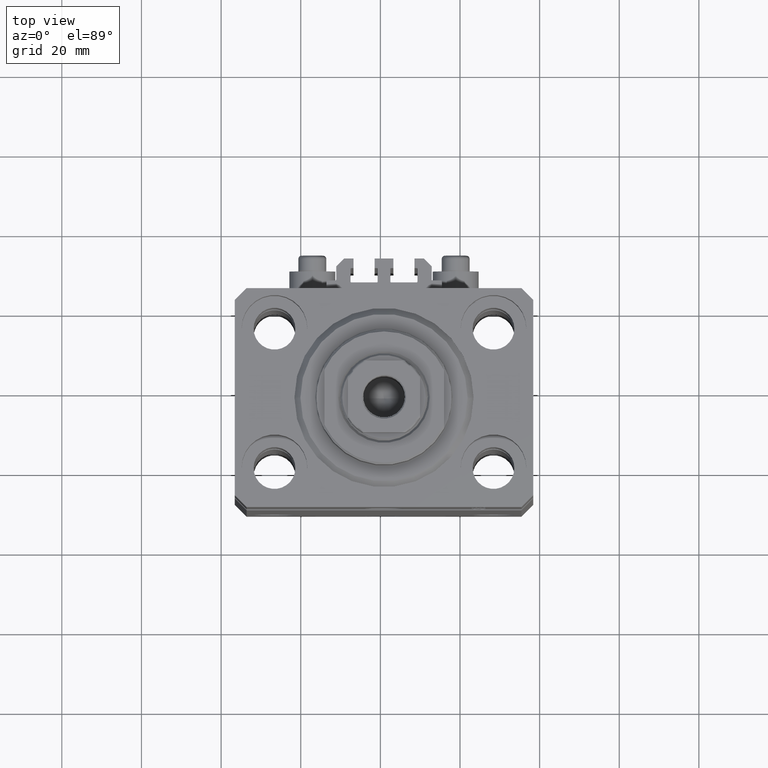
[diagram: clean part render]
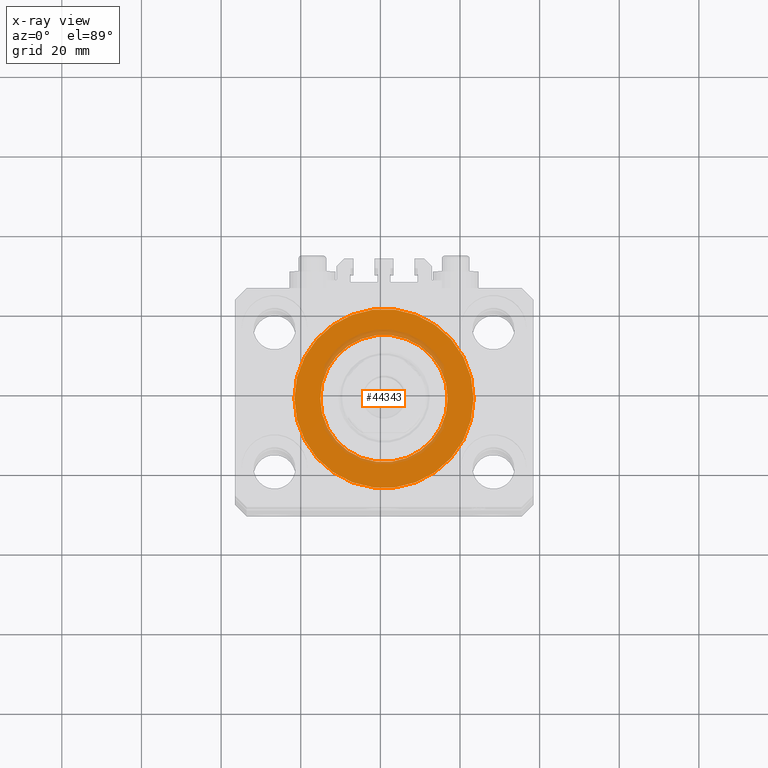
[diagram: x-ray — body ghosted, one internal face saturated and labeled with its STEP entity id]
A machine part, top view, then the same camera in x-ray: the body is ghosted and one INTERNAL B-rep face — a face not visible from any outside direction — is saturated and labeled: STEP entity #44343.
In plain terms, the highlighted planar face has unit normal (0, 0, 1).
Its self-contained STEP definition (entity closure, byte-faithful):
#533 = CARTESIAN_POINT ( 'NONE',  ( 22.50000000000000355, 0.000000000000000000, -15.00000000000000000 ) ) ;
#6280 = ORIENTED_EDGE ( 'NONE', *, *, #37853, .T. ) ;
#7845 = CARTESIAN_POINT ( 'NONE',  ( 0.000000000000000000, 0.000000000000000000, -15.00000000000000000 ) ) ;
#8595 = CARTESIAN_POINT ( 'NONE',  ( -16.00000000000000000, 1.959434878635765131E-15, -15.00000000000000000 ) ) ;
#9827 = FACE_OUTER_BOUND ( 'NONE', #17164, .T. ) ;
#10947 = VERTEX_POINT ( 'NONE', #533 ) ;
#10969 = EDGE_CURVE ( 'NONE', #29924, #16838, #43733, .T. ) ;
#11720 = DIRECTION ( 'NONE',  ( 1.000000000000000000, 0.000000000000000000, 0.000000000000000000 ) ) ;
#11958 = DIRECTION ( 'NONE',  ( 0.000000000000000000, 0.000000000000000000, 1.000000000000000000 ) ) ;
#12510 = DIRECTION ( 'NONE',  ( 1.000000000000000000, 0.000000000000000000, -0.000000000000000000 ) ) ;
#12616 = DIRECTION ( 'NONE',  ( 0.000000000000000000, 0.000000000000000000, 1.000000000000000000 ) ) ;
#15825 = AXIS2_PLACEMENT_3D ( 'NONE', #31547, #41943, #31304 ) ;
#16838 = VERTEX_POINT ( 'NONE', #8595 ) ;
#17102 = FACE_BOUND ( 'NONE', #26019, .T. ) ;
#17164 = EDGE_LOOP ( 'NONE', ( #41448, #6280 ) ) ;
#17683 = ORIENTED_EDGE ( 'NONE', *, *, #10969, .F. ) ;
#19264 = CARTESIAN_POINT ( 'NONE',  ( 0.000000000000000000, 0.000000000000000000, -15.00000000000000000 ) ) ;
#19422 = AXIS2_PLACEMENT_3D ( 'NONE', #7845, #11958, #11720 ) ;
#19659 = CARTESIAN_POINT ( 'NONE',  ( 0.000000000000000000, 0.000000000000000000, -15.00000000000000000 ) ) ;
#20501 = PLANE ( 'NONE',  #24182 ) ;
#21016 = EDGE_CURVE ( 'NONE', #16838, #29924, #42091, .T. ) ;
#21987 = CARTESIAN_POINT ( 'NONE',  ( 16.00000000000000000, 0.000000000000000000, -15.00000000000000000 ) ) ;
#24182 = AXIS2_PLACEMENT_3D ( 'NONE', #31884, #32121, #12510 ) ;
#26019 = EDGE_LOOP ( 'NONE', ( #17683, #33902 ) ) ;
#27018 = DIRECTION ( 'NONE',  ( 1.000000000000000000, 0.000000000000000000, 0.000000000000000000 ) ) ;
#27408 = DIRECTION ( 'NONE',  ( 1.000000000000000000, 0.000000000000000000, 0.000000000000000000 ) ) ;
#29924 = VERTEX_POINT ( 'NONE', #21987 ) ;
#31304 = DIRECTION ( 'NONE',  ( 1.000000000000000000, 0.000000000000000000, 0.000000000000000000 ) ) ;
#31547 = CARTESIAN_POINT ( 'NONE',  ( 0.000000000000000000, 0.000000000000000000, -15.00000000000000000 ) ) ;
#31884 = CARTESIAN_POINT ( 'NONE',  ( 0.000000000000000000, 0.000000000000000000, -15.00000000000000000 ) ) ;
#32121 = DIRECTION ( 'NONE',  ( 0.000000000000000000, 0.000000000000000000, 1.000000000000000000 ) ) ;
#32497 = CIRCLE ( 'NONE', #44844, 22.50000000000000355 ) ;
#33309 = CIRCLE ( 'NONE', #19422, 22.50000000000000355 ) ;
#33902 = ORIENTED_EDGE ( 'NONE', *, *, #21016, .F. ) ;
#34039 = DIRECTION ( 'NONE',  ( 0.000000000000000000, 0.000000000000000000, 1.000000000000000000 ) ) ;
#37853 = EDGE_CURVE ( 'NONE', #38108, #10947, #32497, .T. ) ;
#38108 = VERTEX_POINT ( 'NONE', #43044 ) ;
#40496 = EDGE_CURVE ( 'NONE', #10947, #38108, #33309, .T. ) ;
#41448 = ORIENTED_EDGE ( 'NONE', *, *, #40496, .T. ) ;
#41943 = DIRECTION ( 'NONE',  ( 0.000000000000000000, 0.000000000000000000, 1.000000000000000000 ) ) ;
#42091 = CIRCLE ( 'NONE', #47474, 16.00000000000000000 ) ;
#43044 = CARTESIAN_POINT ( 'NONE',  ( -22.50000000000000355, 2.755455298081545172E-15, -15.00000000000000000 ) ) ;
#43733 = CIRCLE ( 'NONE', #15825, 16.00000000000000000 ) ;
#44343 = ADVANCED_FACE ( 'NONE', ( #17102, #9827 ), #20501, .T. ) ;
#44844 = AXIS2_PLACEMENT_3D ( 'NONE', #19659, #12616, #27408 ) ;
#47474 = AXIS2_PLACEMENT_3D ( 'NONE', #19264, #34039, #27018 ) ;